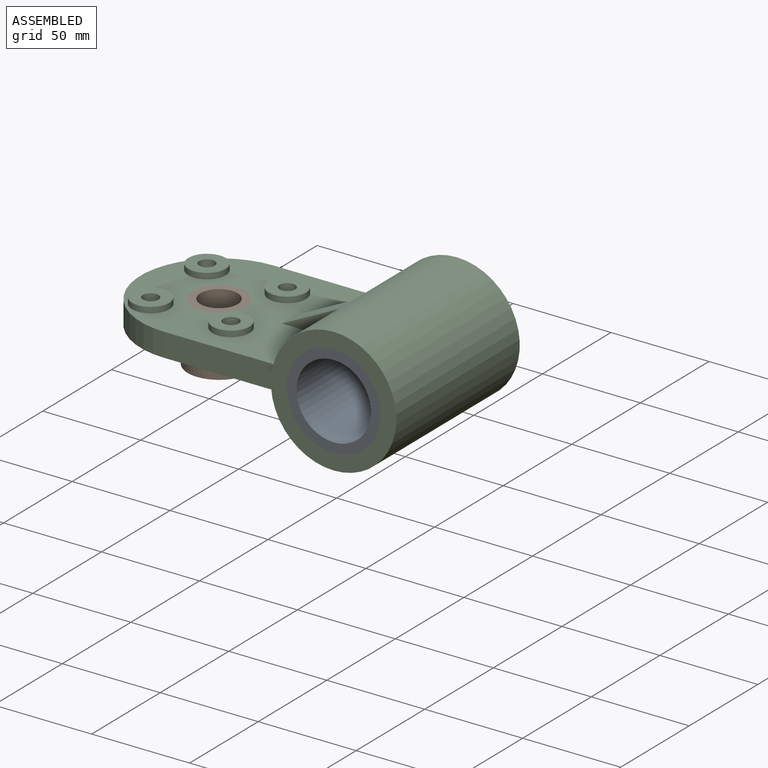
[diagram: assembled view]
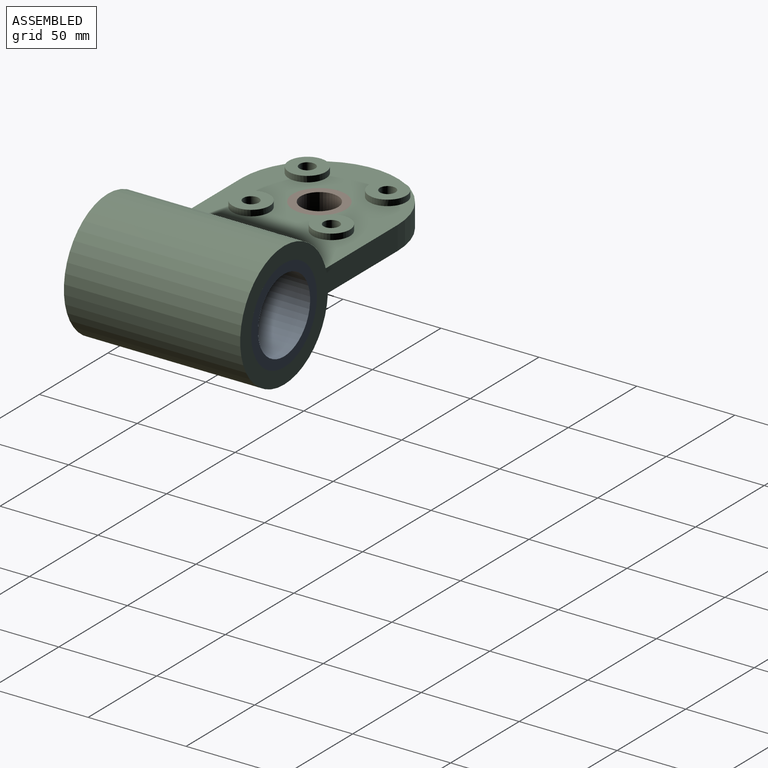
[diagram: assembled view, second angle]
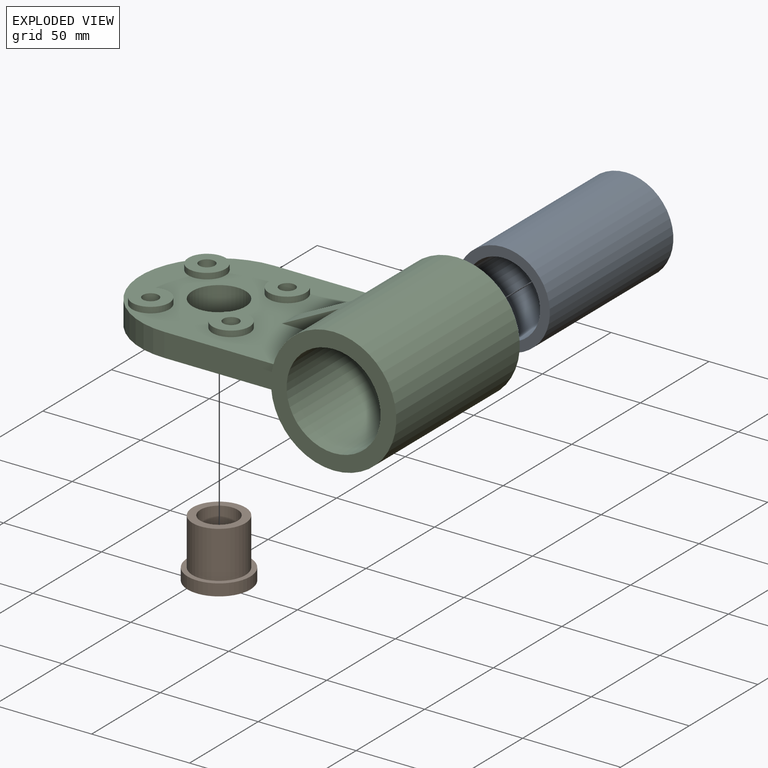
[diagram: exploded view]
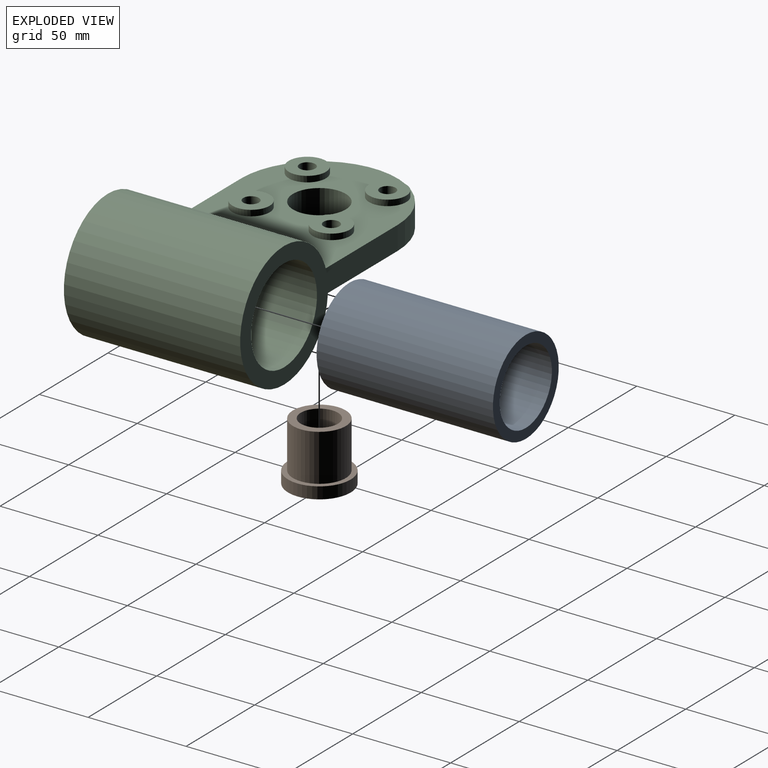
[diagram: exploded view, second angle]
ASSEMBLY  parts=3 mates=2
PART A: 4 faces, bbox 48x90x48 mm
  f0: cylinder r=19mm len=90mm, axis (0,1,0), area 10744.2mm2, adj f2,f3
  f1: cylinder r=24mm len=90mm, axis (0,1,0), area 13571.7mm2, adj f2,f3
  f2: plane 48x48mm, normal (0,-1,0), area 675.4mm2, adj f0,f1
  f3: plane 48x48mm, normal (0,1,0), area 675.4mm2, adj f0,f1
PART B: 6 faces, bbox 32x32x30 mm
  f0: cylinder r=16mm len=32mm, axis (0,0,-1), area 603.2mm2, adj f2,f3
  f1: cylinder r=9.5mm len=30mm, axis (0,0,-1), area 1790.7mm2, adj f3,f5
  f2: plane 32x32mm, normal (0,0,1), area 231.7mm2, adj f0,f4
  f3: plane 32x32mm, normal (0,0,-1), area 520.7mm2, adj f0,f1
  f4: cylinder r=13.5mm len=27mm, axis (0,0,-1), area 2035.8mm2, adj f2,f5
  f5: plane 27x27mm, normal (0,0,1), area 289mm2, adj f1,f4
PART C: 27 faces, bbox 162x90x64 mm
  f0: cylinder r=4mm len=15mm, axis (0,0,-1), area 377mm2, adj f2,f9
  f1: cylinder r=9.5mm len=19mm, axis (0,0,-1), area 179.1mm2, adj f2,f8
  f2: plane 19x19mm, normal (0,0,1), area 233.3mm2, adj f0,f1
  f3: cylinder r=4mm len=15mm, axis (0,0,-1), area 377mm2, adj f5,f9
  f4: cylinder r=9.5mm len=19mm, axis (0,0,-1), area 179.1mm2, adj f5,f8
  f5: plane 19x19mm, normal (0,0,1), area 233.3mm2, adj f3,f4
  f6: cylinder r=40mm len=80mm, axis (0,0,-1), area 1508mm2, adj f8,f9,f10,f11
  f7: cylinder r=13.5mm len=27mm, axis (0,0,-1), area 2035.8mm2, adj f8,f13
  f8: plane 98.57x80mm, normal (0,0,1), area 5262.6mm2, adj f1,f4,f6,f7,f10,f11,f15,f18
  f9: plane 98.57x80mm, normal (0,0,-1), area 5863.5mm2, adj f0,f3,f6,f10,f11,f12,f16,f19
  f10: plane 58.57x12mm, normal (0,-1,0), area 698.3mm2, adj f6,f8,f9,f21
  f11: plane 58.57x12mm, normal (0,1,0), area 698.3mm2, adj f6,f8,f9,f21
  f12: cylinder r=19mm len=38mm, axis (0,0,1), area 1432.6mm2, adj f9,f13
  f13: plane 38x38mm, normal (0,0,-1), area 561.6mm2, adj f7,f12
  f14: plane 19x19mm, normal (0,0,1), area 233.3mm2, adj f15,f16
  f15: cylinder r=9.5mm len=19mm, axis (0,0,-1), area 179.1mm2, adj f8,f14
  f16: cylinder r=4mm len=15mm, axis (0,0,-1), area 377mm2, adj f9,f14
  f17: plane 19x19mm, normal (0,0,1), area 233.3mm2, adj f18,f19
  f18: cylinder r=9.5mm len=19mm, axis (0,0,-1), area 179.1mm2, adj f8,f17
  f19: cylinder r=4mm len=15mm, axis (0,0,-1), area 377mm2, adj f9,f17
  f20: cylinder r=24mm len=90mm, axis (0,1,0), area 13571.7mm2, adj f22,f23
  f21: cylinder r=32mm len=90mm, axis (0,1,0), area 16958.4mm2, adj f8,f9,f10,f11,f22,f23,f24,f25
  f22: plane 64x64mm, normal (0,-1,0), area 1407.4mm2, adj f20,f21
  f23: plane 64x64mm, normal (0,1,0), area 1407.4mm2, adj f20,f21
  f24: plane 30.41x15.2mm, normal (-0.45,0,0.89), area 340mm2, adj f8,f21,f25,f26
  f25: plane 30.41x15.2mm, normal (0,-1,0), area 161.5mm2, adj f8,f21,f24
  f26: plane 30.41x15.2mm, normal (0,1,0), area 161.5mm2, adj f8,f21,f24
PLACE A at identity
PLACE B t=(-90,0,-24)mm
PLACE C at identity
MATE slider B.f1 <-> C.f12  axis (0,0,-1) through (-90,0,-24)mm
MATE revolute C.f21 <-> A.f0  axis (0,1,0) through (0,0,0)mm
